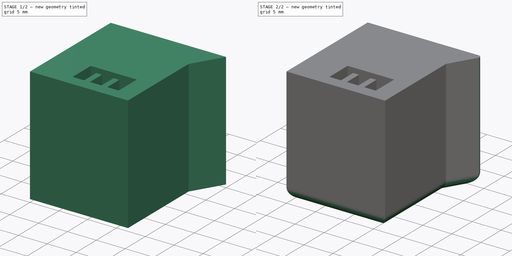
[diagram: build sequence overview — one tinted view per stage of 2, left to right]
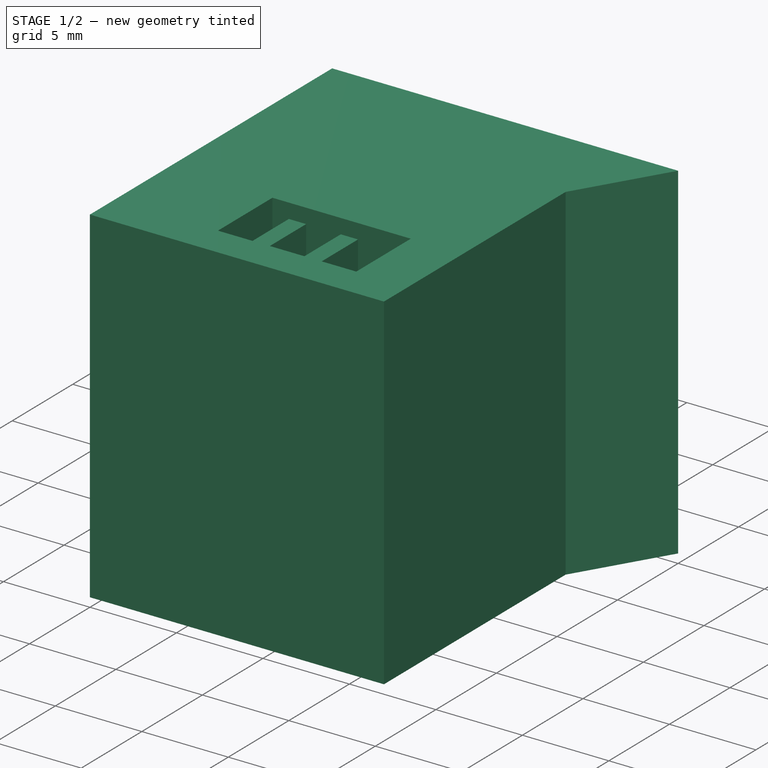
[diagram: stage 1 of 2 — iso view after this stage's code; geometry added in this stage tinted green]
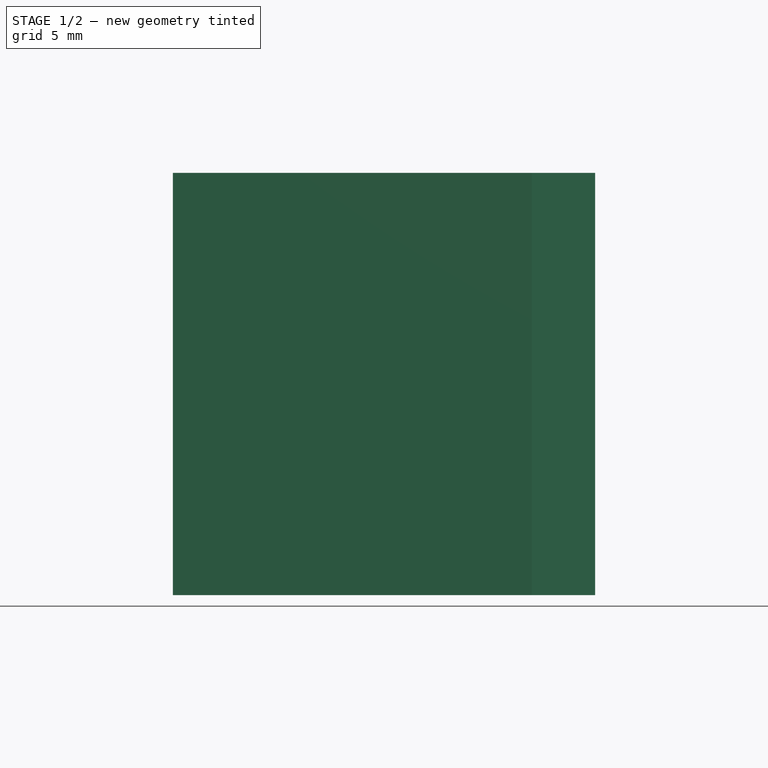
[diagram: stage 1 of 2 — front view after this stage's code; geometry added in this stage tinted green]
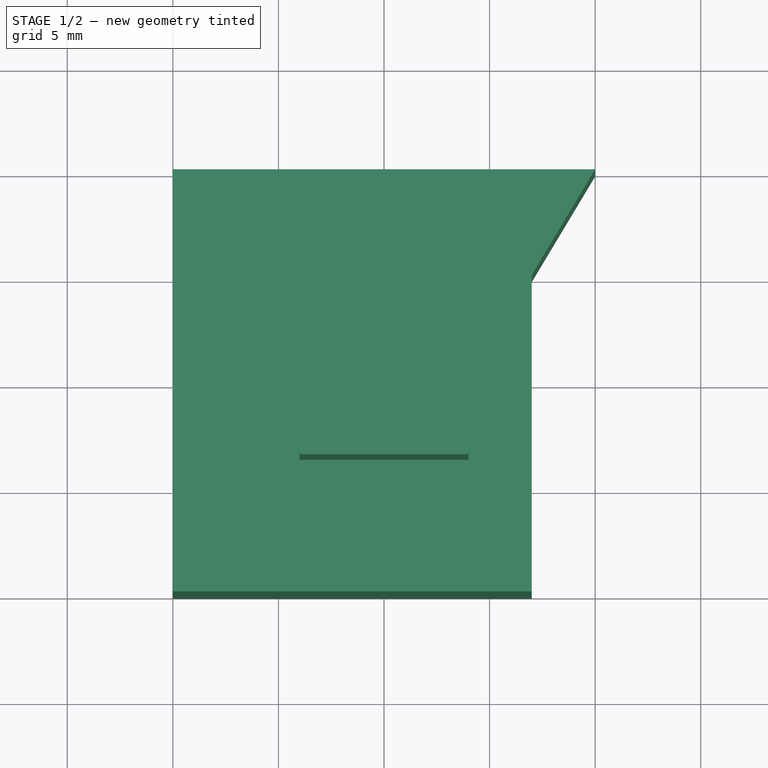
[diagram: stage 1 of 2 — top view after this stage's code; geometry added in this stage tinted green]
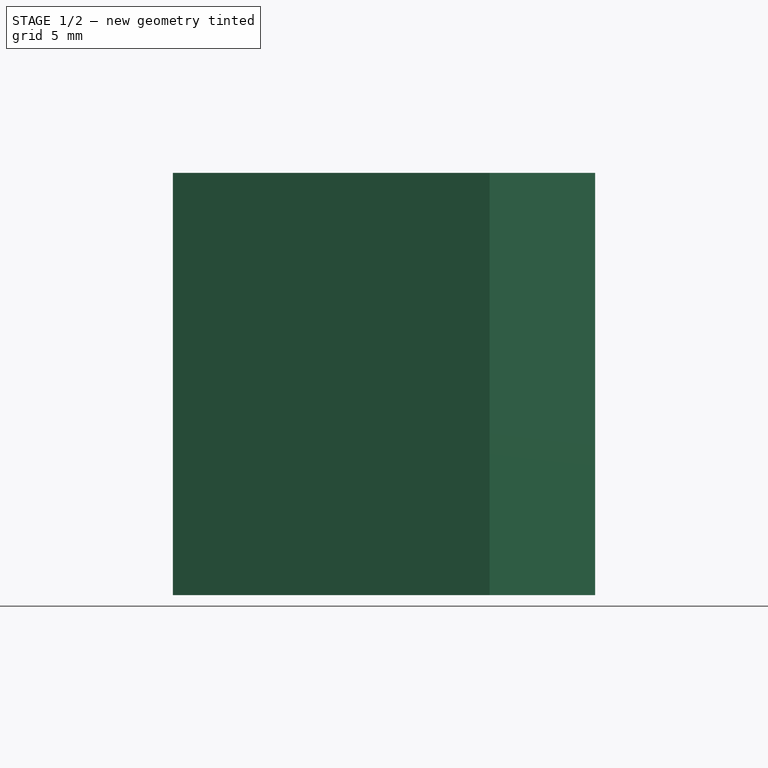
[diagram: stage 1 of 2 — right view after this stage's code; geometry added in this stage tinted green]
FCSTD DOCUMENT  (FreeCAD 0.19R24415 (Git))
Label: KenwoodButton
License: All rights reserved
LicenseURL: http://en.wikipedia.org/wiki/All_rights_reserved
objects: Sketcher::SketchObject×2, Part::Fillet×2, PartDesign::Pad×1, PartDesign::Pocket×1, PartDesign::Body×1
note: 9 computed .brp shape members not serialized (recipe doc carries the construction recipe); baked Part::Feature solids carry a one-line shape summary decoded from their .brp

FEATURE [Sketcher::SketchObject] Sketch
  FullyConstrained = true
  MapMode = 5
  Support = -> [XY_Plane]
  sketch-geometry (5):
    g0: LineSegment StartX=0 StartY=0 StartZ=0 EndX=0 EndY=20 EndZ=0
    g1: LineSegment StartX=0 StartY=20 StartZ=0 EndX=20 EndY=20 EndZ=0
    g2: LineSegment StartX=20 StartY=20 StartZ=0 EndX=17 EndY=15 EndZ=0
    g3: LineSegment StartX=17 StartY=15 StartZ=0 EndX=17 EndY=0 EndZ=0
    g4: LineSegment StartX=17 StartY=0 StartZ=0 EndX=0 EndY=0 EndZ=0
  constraints (14):
    c: Coincident(g-1,g0)
    c: PointOnObject(g0,g-2)
    c: Coincident(g0,g1)
    c: Horizontal(g1)
    c: Coincident(g1,g2)
    c: Coincident(g2,g3)
    c: PointOnObject(g3,g-1)
    c: Vertical(g3)
    c: Coincident(g3,g4)
    c: Coincident(g4,g0)
    c: DistanceY(g0,g0) = 20
    c: DistanceY(g3,g3) = 15
    c: DistanceX(g4,g4) = 17
    c: DistanceX(g1,g1) = 20
FEATURE [PartDesign::Pad] Pad
  Direction = (1,1,1)
  Length = 20
  Length2 = 100
  Profile = -> Sketch
  Reversed = true
  Type = 0
FEATURE [Sketcher::SketchObject] Sketch001
  FullyConstrained = true
  MapMode = 5
  Support = -> [XY_Plane]
  expr: Constraints[28] = 17mm - 3mm
  sketch-geometry (12):
    g0: LineSegment StartX=6 StartY=2 StartZ=0 EndX=8 EndY=2 EndZ=0
    g1: LineSegment StartX=8 StartY=2 StartZ=0 EndX=8 EndY=5 EndZ=0
    g2: LineSegment StartX=8 StartY=5 StartZ=0 EndX=9 EndY=5 EndZ=0
    g3: LineSegment StartX=9 StartY=5 StartZ=0 EndX=9 EndY=2 EndZ=0
    g4: LineSegment StartX=9 StartY=2 StartZ=0 EndX=11 EndY=2 EndZ=0
    g5: LineSegment StartX=11 StartY=2 StartZ=0 EndX=11 EndY=5 EndZ=0
    g6: LineSegment StartX=11 StartY=5 StartZ=0 EndX=12 EndY=5 EndZ=0
    g7: LineSegment StartX=12 StartY=5 StartZ=0 EndX=12 EndY=2 EndZ=0
    g8: LineSegment StartX=12 StartY=2 StartZ=0 EndX=14 EndY=2 EndZ=0
    g9: LineSegment StartX=14 StartY=2 StartZ=0 EndX=14 EndY=6.5 EndZ=0
    g10: LineSegment StartX=14 StartY=6.5 StartZ=0 EndX=6 EndY=6.5 EndZ=0
    g11: LineSegment StartX=6 StartY=6.5 StartZ=0 EndX=6 EndY=2 EndZ=0
  constraints (36):
    c: Horizontal(g0)
    c: Coincident(g0,g1)
    c: Vertical(g1)
    c: Coincident(g1,g2)
    c: Horizontal(g2)
    c: Coincident(g2,g3)
    c: Vertical(g3)
    c: Coincident(g3,g4)
    c: Horizontal(g4)
    c: Coincident(g4,g5)
    c: Vertical(g5)
    c: Coincident(g5,g6)
    c: Horizontal(g6)
    c: Coincident(g6,g7)
    c: Vertical(g7)
    c: Coincident(g7,g8)
    c: Horizontal(g8)
    c: Coincident(g8,g9)
    c: Vertical(g9)
    c: Coincident(g9,g10)
    c: Horizontal(g10)
    c: Coincident(g10,g11)
    c: Coincident(g11,g0)
    c: Vertical(g11)
    c: DistanceX(g10,g10) = 8
    c: DistanceY(g11,g11) = 4.5
    c: DistanceY(g1,g10) = 1.5
    c: DistanceY(g-1,g0) = 2
    c: DistanceX(g-1,g8) = 14
    c: Horizontal(g0,g3)
    c: Horizontal(g3,g7)
    c: Horizontal(g2,g5)
    c: DistanceX(g4,g4) = 2
    c: DistanceX(g2,g2) = 1
    c: DistanceX(g6,g6) = 1
    c: DistanceX(g0,g0) = 2
FEATURE [PartDesign::Pocket] Pocket
  BaseFeature = -> Pad
  Length = 15
  Length2 = 100
  Profile = -> Sketch001
  Type = 0
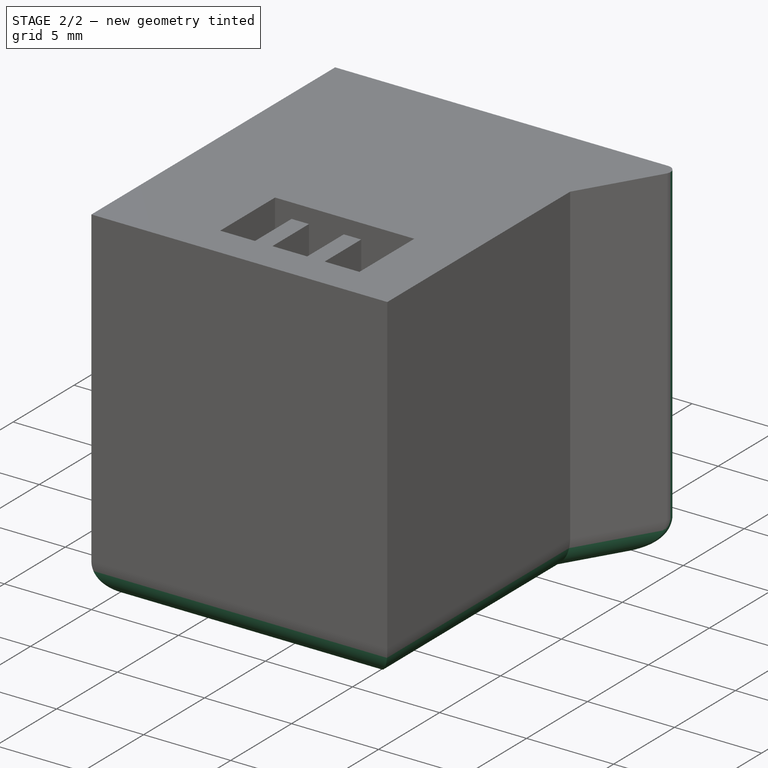
[diagram: stage 2 of 2 — iso view after this stage's code; geometry added in this stage tinted green]
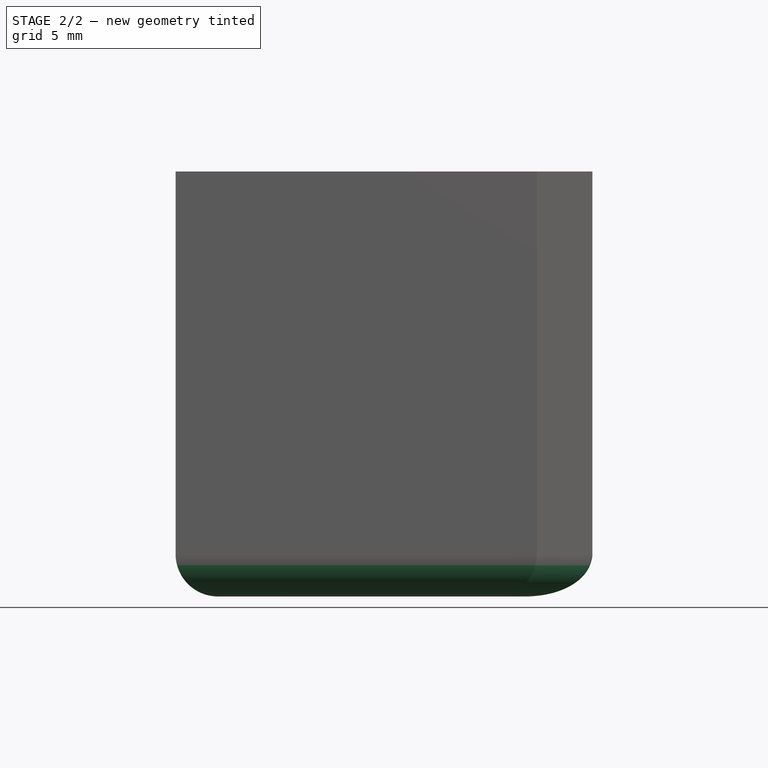
[diagram: stage 2 of 2 — front view after this stage's code; geometry added in this stage tinted green]
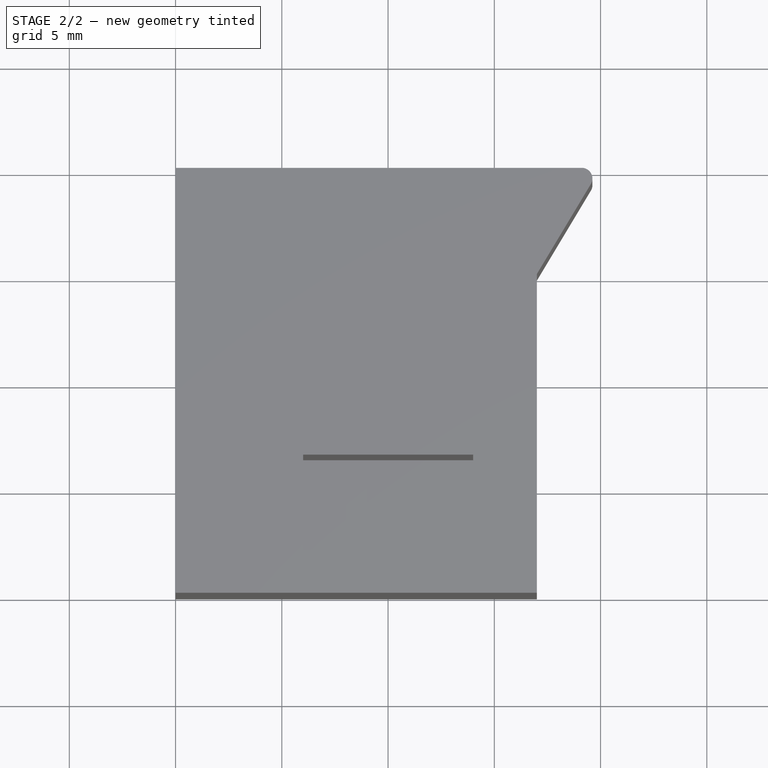
[diagram: stage 2 of 2 — top view after this stage's code; geometry added in this stage tinted green]
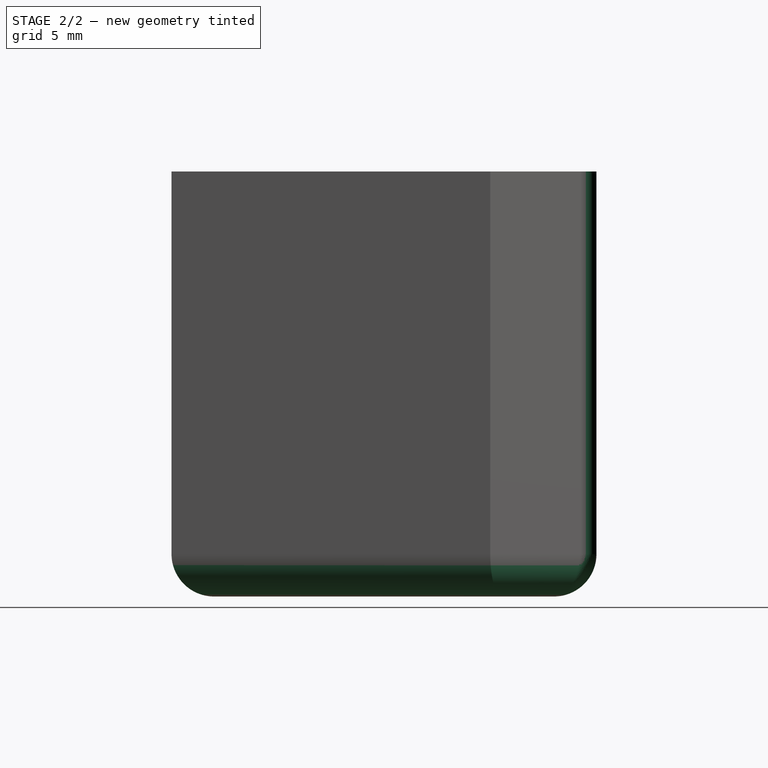
[diagram: stage 2 of 2 — right view after this stage's code; geometry added in this stage tinted green]
FEATURE [PartDesign::Body] Body
  Group = -> [Sketch,Pad,Sketch001,Pocket]
  Origin = -> Origin
  Tip = -> Pocket
FEATURE [Part::Fillet] Fillet
  Base = -> Pocket
  Edges = 5 edges r=2: [Edge4,Edge7,Edge10,Edge25,Edge26]
FEATURE [Part::Fillet] Fillet001
  Base = -> Fillet
  Edges = 1 edges r=0.5: [Edge27]
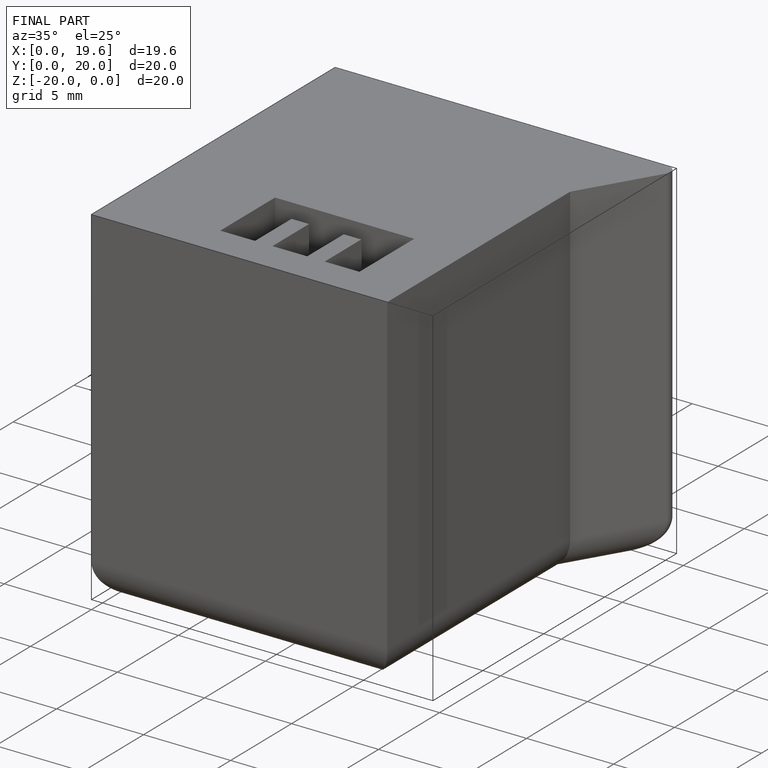
[diagram: finished part — iso view with bounding-box wireframe]
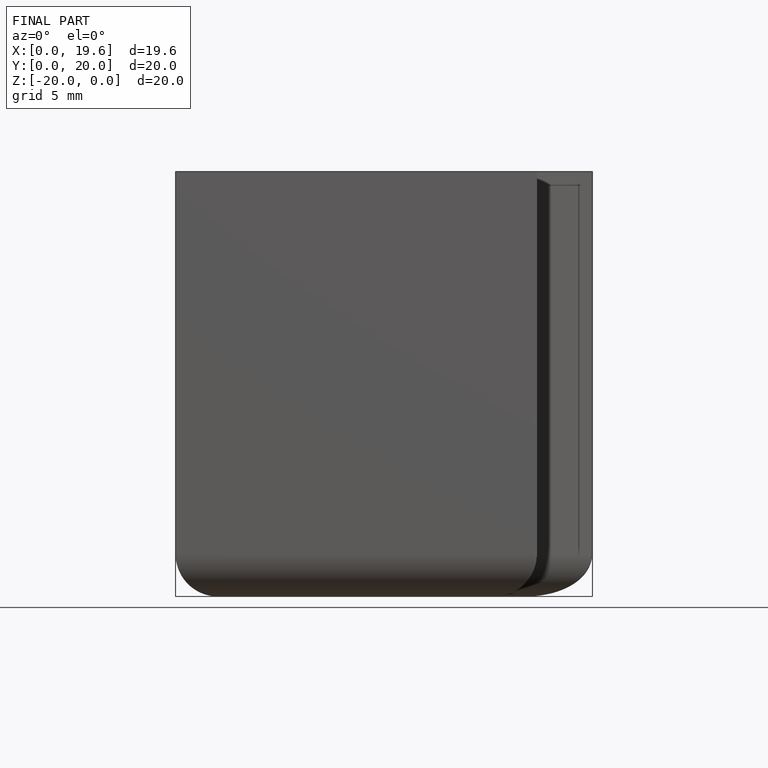
[diagram: finished part — front view with bounding-box wireframe]
